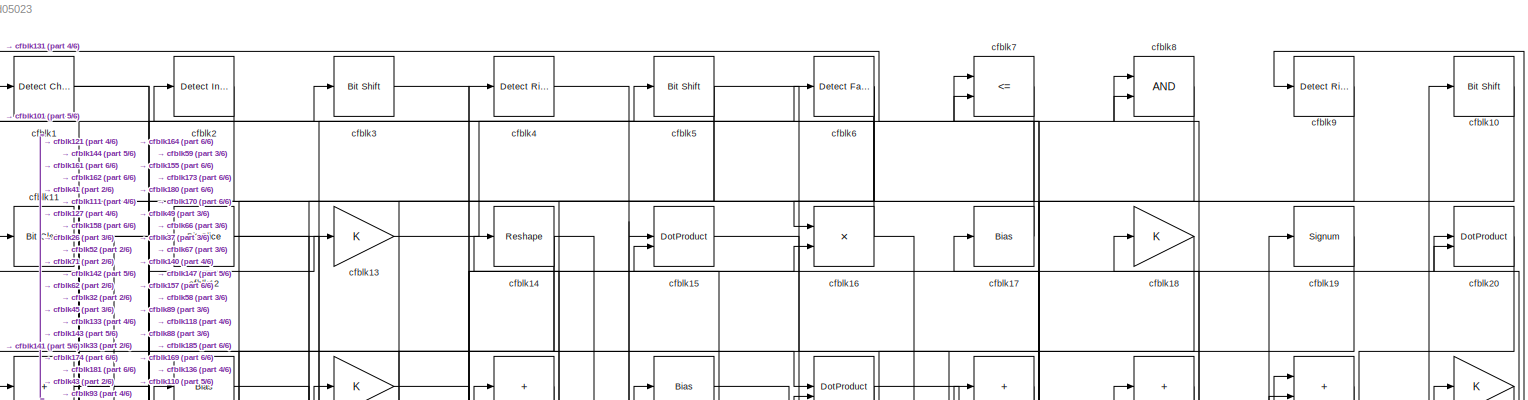
[diagram: root canvas - part 1/6, full width, top band]
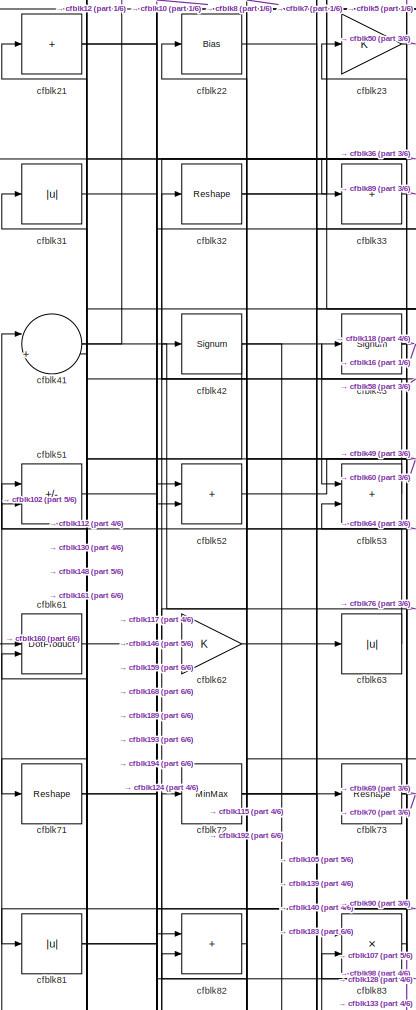
[diagram: root canvas - part 2/6, top left region]
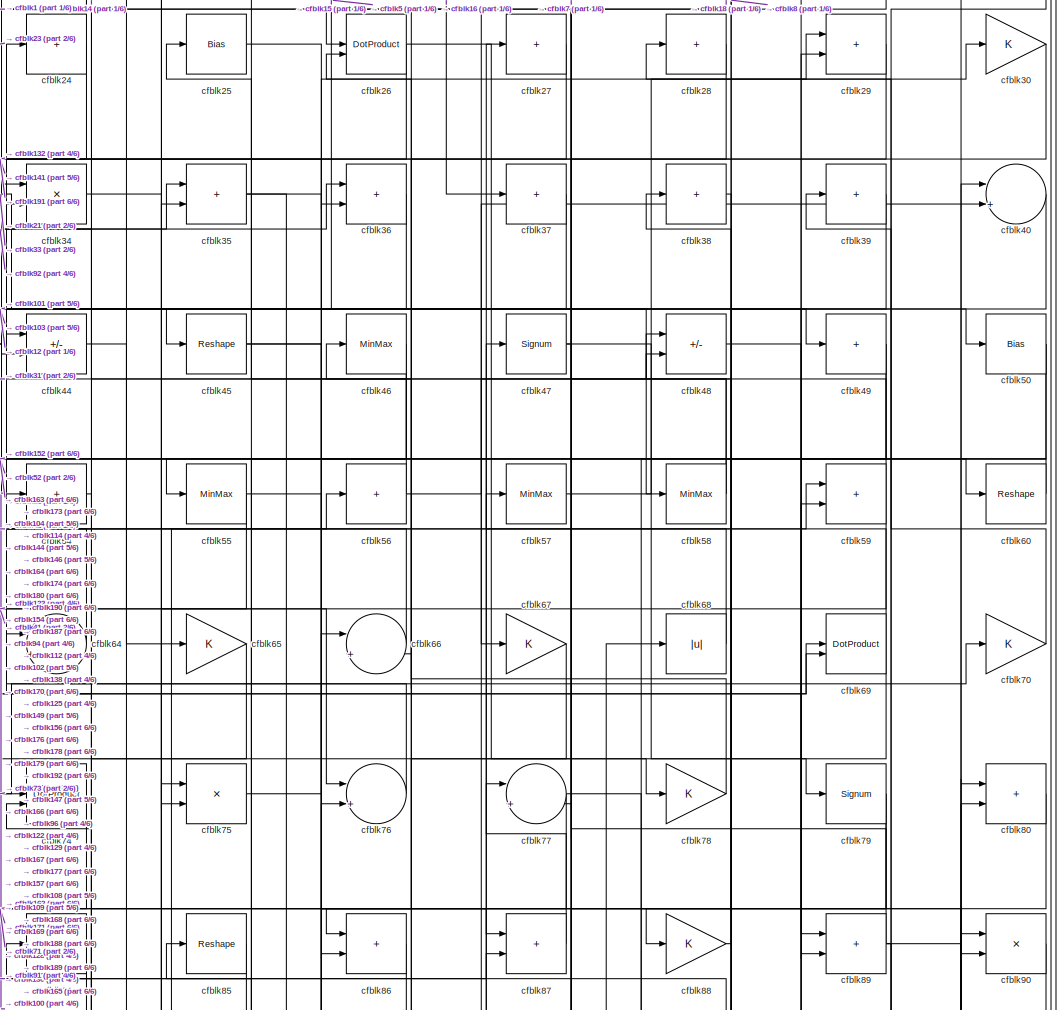
[diagram: root canvas - part 3/6, top center region]
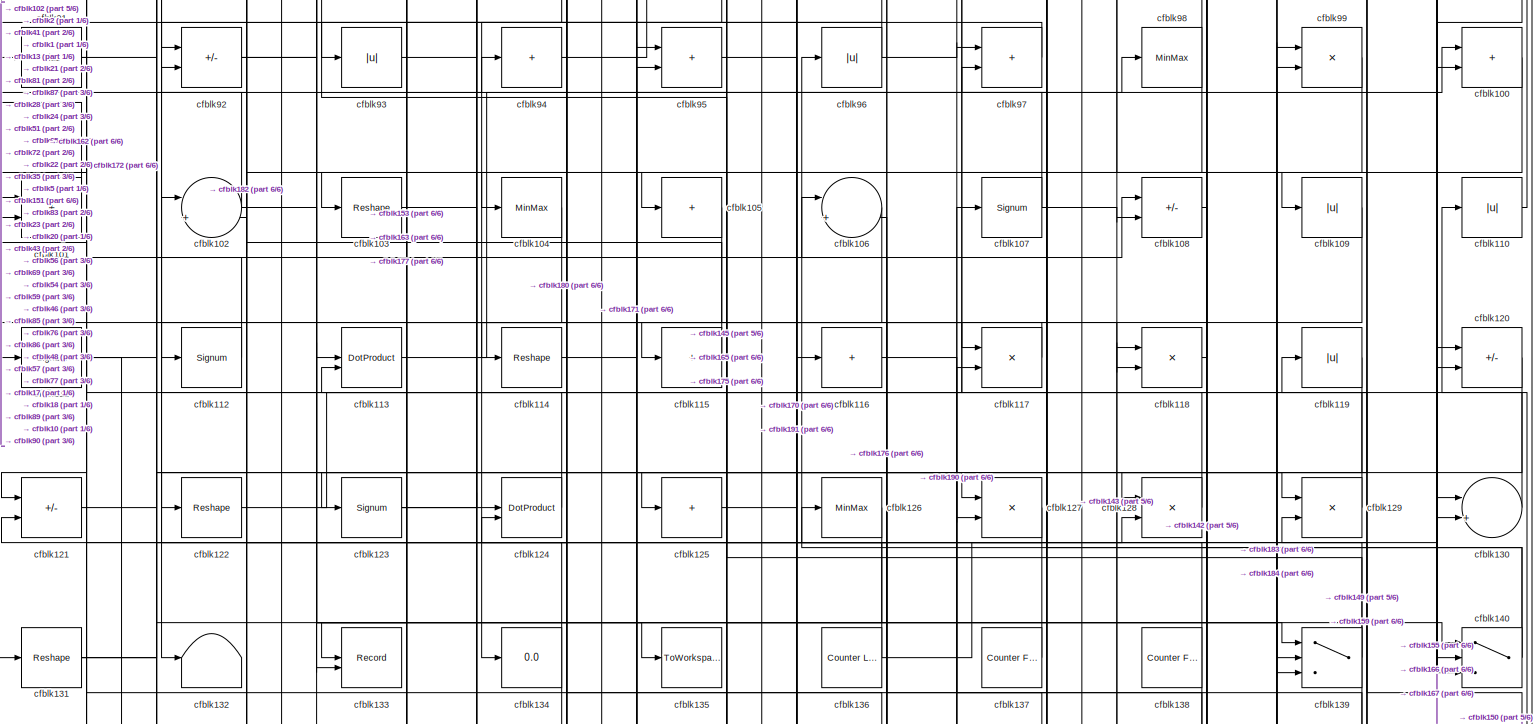
[diagram: root canvas - part 4/6, full width, middle band]
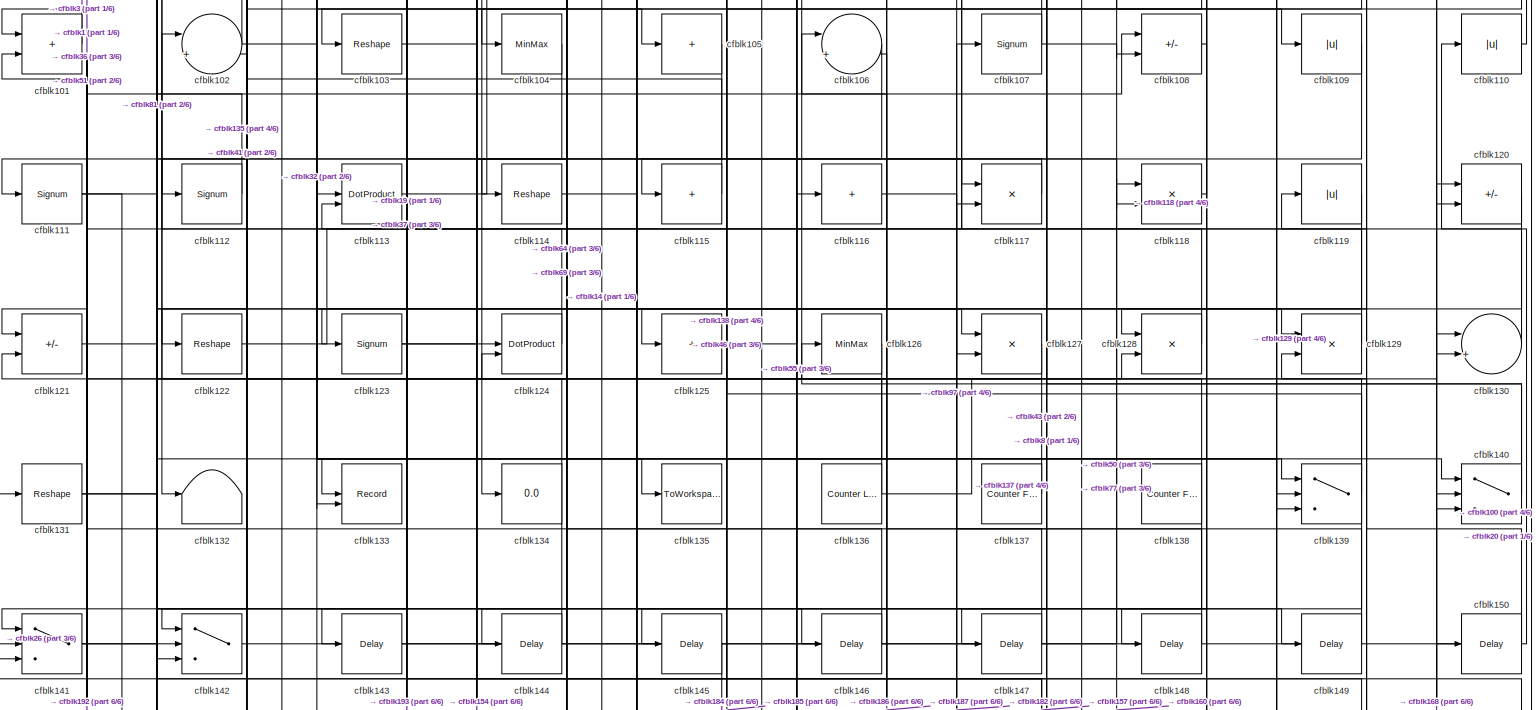
[diagram: root canvas - part 5/6, full width, middle band]
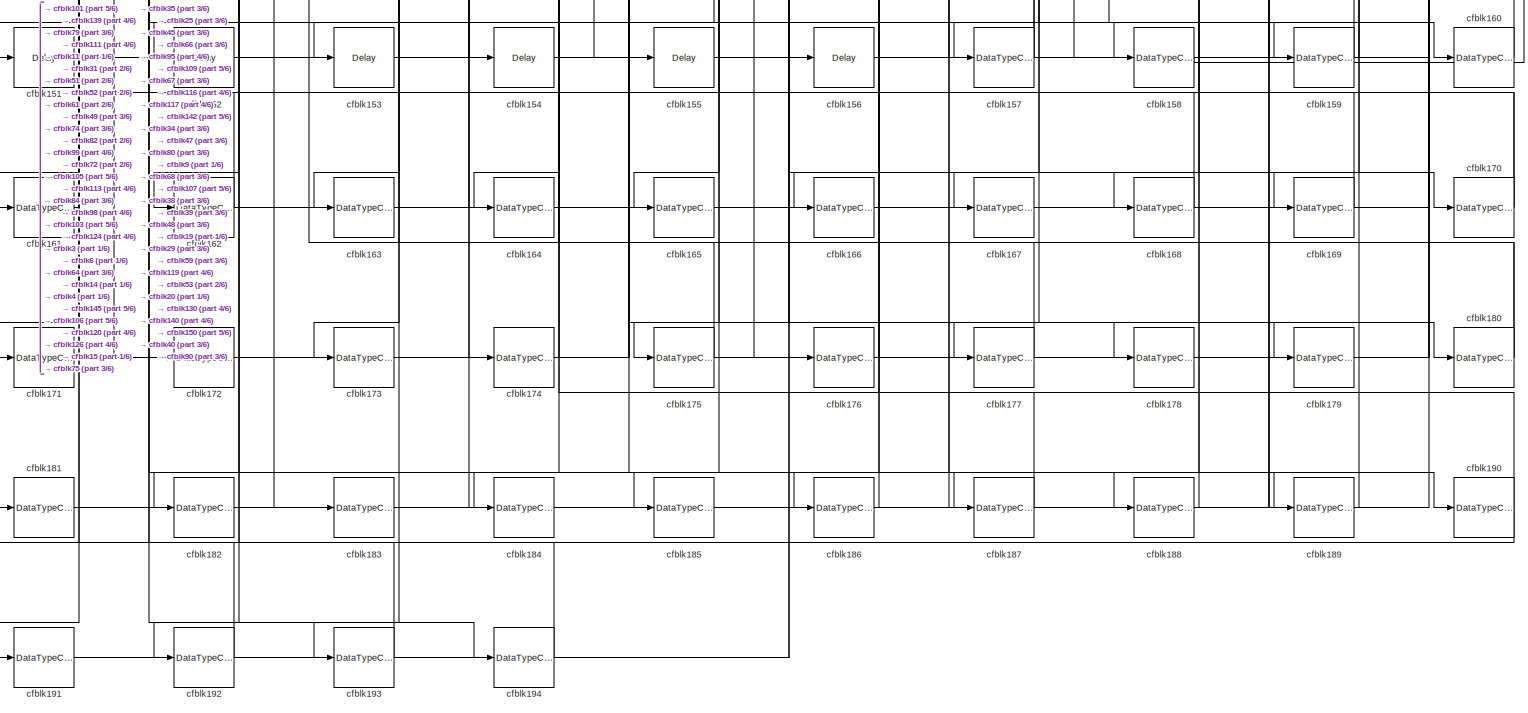
[diagram: root canvas - part 6/6, full width, bottom band]
MODEL slx_635ac7d05023
KIND model
CONFIG AbsTol = auto
CONFIG EnableMultiTasking = off
CONFIG FixedStep = auto
CONFIG MaxStep = auto
CONFIG MinStep = auto
CONFIG RelTol = 1e-3
CONFIG SampleTimeConstraint = Unconstrained
CONFIG SolverName = VariableStepAuto
CONFIG StartTime = 0.0
CONFIG StopTime = 10.0
BLOCK [Reference] cfblk1  REF=simulink/Logic and Bit
Operations/Detect
Change
  LibrarySourceBlock = hdlsllib/Logic and Bit\nOperations/Detect\nChange
  SourceBlock = simulink/Logic and Bit\nOperations/Detect\nChange
  SourceType = Detect Change
BLOCK [Reference] cfblk10  REF=hdlsllib/Logic and Bit
Operations/Bit Shift
  SourceBlock = hdlsllib/Logic and Bit\nOperations/Bit Shift
  SourceType = Bit Shift
BLOCK [Sum] cfblk100
  IconShape = rectangular
BLOCK [Sum] cfblk101
  IconShape = rectangular
BLOCK [Sum] cfblk102
  Inputs = |++
BLOCK [Reshape] cfblk103
BLOCK [MinMax] cfblk104
BLOCK [Sum] cfblk105
  IconShape = rectangular
  Inputs = +
BLOCK [Sum] cfblk106
  Inputs = |++
BLOCK [Signum] cfblk107
BLOCK [Sum] cfblk108
  IconShape = rectangular
  Inputs = +-
BLOCK [Abs] cfblk109
  SaturateOnIntegerOverflow = off
BLOCK [Reference] cfblk11  REF=simulink/Logic and Bit
Operations/Bit Clear
  LibrarySourceBlock = hdlsllib/Logic and Bit\nOperations/Bit Clear
  SourceBlock = simulink/Logic and Bit\nOperations/Bit Clear
  SourceType = Bit Clear
BLOCK [Abs] cfblk110
  SaturateOnIntegerOverflow = off
BLOCK [Signum] cfblk111
BLOCK [Signum] cfblk112
BLOCK [DotProduct] cfblk113
  OutDataTypeStr = Inherit: Inherit via internal rule
BLOCK [Reshape] cfblk114
BLOCK [Sum] cfblk115
  IconShape = rectangular
  Inputs = +
BLOCK [Sum] cfblk116
  IconShape = rectangular
  Inputs = +
BLOCK [Product] cfblk117
  Inputs = */
  RndMeth = Zero
  SaturateOnIntegerOverflow = on
BLOCK [Product] cfblk118
  Inputs = */
  RndMeth = Zero
  SaturateOnIntegerOverflow = on
BLOCK [Abs] cfblk119
  SaturateOnIntegerOverflow = off
BLOCK [Reference] cfblk12  REF=hdlsllib/Logic and Bit
Operations/Bit Slice
  SourceBlock = hdlsllib/Logic and Bit\nOperations/Bit Slice
  SourceType = Bit Slice
BLOCK [Sum] cfblk120
  IconShape = rectangular
  Inputs = +-
BLOCK [Sum] cfblk121
  IconShape = rectangular
  Inputs = +-
BLOCK [Reshape] cfblk122
BLOCK [Signum] cfblk123
BLOCK [DotProduct] cfblk124
  OutDataTypeStr = Inherit: Inherit via internal rule
BLOCK [Sum] cfblk125
  IconShape = rectangular
  Inputs = +
BLOCK [MinMax] cfblk126
BLOCK [Product] cfblk127
  Inputs = */
  RndMeth = Zero
  SaturateOnIntegerOverflow = on
BLOCK [Product] cfblk128
  Inputs = */
  RndMeth = Zero
  SaturateOnIntegerOverflow = on
BLOCK [Product] cfblk129
  Inputs = */
  RndMeth = Zero
  SaturateOnIntegerOverflow = on
BLOCK [Gain] cfblk13
BLOCK [Sum] cfblk130
  Inputs = |++
BLOCK [Reshape] cfblk131
BLOCK [Terminator] cfblk132
BLOCK [Record] cfblk133
  CompatibilityTag = XY
  FileSettingsInternal = {"entries":[{"content":{"excelSettings":{"content":{},"type":"Streamout.ExcelSettings"}},"type":"Streamout.FileSettingStorage","uuid":""}],"packageUris":["http:\/\/schema.mathworks.com\/mf0\/streamout_blocks\/R2020a"],"version":"1.0"}
  Layout = [1 1]
  SignalsInternal = {"entries":[{"content":{"signals":[{"content":{"blockPath":[],"dimensions":[1],"domain":"","lineColor":"#a2142f","plots":[1],"port":1,"signalID":4473,"signalName":"XY Graph:1"},"type":"RecordBlkView.Signal","uuid":""},{"content":{"blockPath":[],"dimensions":[1],"domain":"","lineColor":"#139fff","plots":[1],"port":2,"signalID":4476,"signalName":"XY Graph:2"},"type":"RecordBlkView.Signal","uuid":""}...<+146ch>
  VisualizationBindings = {"xyplotplugin":{"info":[{"series":[{"bindingParametersList":[{"parameter":"X-Axis","signalID":4473,"signalName":"XY Graph:1"},{"parameter":"Y-Axis","signalID":4476,"signalName":"XY Graph:2"}],"seriesID":47126}],"subplotID":1}]}}
  st = -1
BLOCK [Display] cfblk134
  Decimation = 1
BLOCK [ToWorkspace] cfblk135
  MaxDataPoints = inf
  SampleTime = -1
  SaveFormat = Timeseries
  VariableName = simout
BLOCK [Reference] cfblk136  REF=hdlsllib/Sources/Counter
Limited
  SourceBlock = hdlsllib/Sources/Counter\nLimited
  SourceType = Counter Limited
BLOCK [Reference] cfblk137  REF=hdlsllib/Sources/Counter
Free-Running
  SourceBlock = hdlsllib/Sources/Counter\nFree-Running
  SourceType = Counter Free-Running
BLOCK [Reference] cfblk138  REF=hdlsllib/Sources/Counter
Free-Running
  SourceBlock = hdlsllib/Sources/Counter\nFree-Running
  SourceType = Counter Free-Running
BLOCK [Switch] cfblk139
  InputSameDT = off
  SaturateOnIntegerOverflow = off
BLOCK [Reshape] cfblk14
BLOCK [Switch] cfblk140
  InputSameDT = off
  SaturateOnIntegerOverflow = off
BLOCK [Switch] cfblk141
  InputSameDT = off
  SaturateOnIntegerOverflow = off
BLOCK [Switch] cfblk142
  InputSameDT = off
  SaturateOnIntegerOverflow = off
BLOCK [Delay] cfblk143
  InputPortMap = u0
  SampleTime = 1
BLOCK [Delay] cfblk144
  InputPortMap = u0
  SampleTime = 1
BLOCK [Delay] cfblk145
  InputPortMap = u0
  SampleTime = 1
BLOCK [Delay] cfblk146
  InputPortMap = u0
  SampleTime = 1
BLOCK [Delay] cfblk147
  InputPortMap = u0
  SampleTime = 1
BLOCK [Delay] cfblk148
  InputPortMap = u0
  SampleTime = 1
BLOCK [Delay] cfblk149
  InputPortMap = u0
  SampleTime = 1
BLOCK [DotProduct] cfblk15
  OutDataTypeStr = Inherit: Inherit via internal rule
BLOCK [Delay] cfblk150
  InputPortMap = u0
  SampleTime = 1
BLOCK [Delay] cfblk151
  InputPortMap = u0
  SampleTime = 1
BLOCK [Delay] cfblk152
  InputPortMap = u0
  SampleTime = 1
BLOCK [Delay] cfblk153
  InputPortMap = u0
  SampleTime = 1
BLOCK [Delay] cfblk154
  InputPortMap = u0
  SampleTime = 1
BLOCK [Delay] cfblk155
  InputPortMap = u0
  SampleTime = 1
BLOCK [Delay] cfblk156
  InputPortMap = u0
  SampleTime = 1
BLOCK [DataTypeConversion] cfblk157
  RndMeth = Floor
  SaturateOnIntegerOverflow = off
BLOCK [DataTypeConversion] cfblk158
  OutDataTypeStr = uint8
  RndMeth = Floor
  SaturateOnIntegerOverflow = off
BLOCK [DataTypeConversion] cfblk159
  RndMeth = Floor
  SaturateOnIntegerOverflow = off
BLOCK [Product] cfblk16
  Inputs = */
  RndMeth = Zero
  SaturateOnIntegerOverflow = on
BLOCK [DataTypeConversion] cfblk160
  OutDataTypeStr = uint8
  RndMeth = Floor
  SaturateOnIntegerOverflow = off
BLOCK [DataTypeConversion] cfblk161
  OutDataTypeStr = uint8
  RndMeth = Floor
  SaturateOnIntegerOverflow = off
BLOCK [DataTypeConversion] cfblk162
  RndMeth = Floor
  SaturateOnIntegerOverflow = off
BLOCK [DataTypeConversion] cfblk163
  OutDataTypeStr = uint8
  RndMeth = Floor
  SaturateOnIntegerOverflow = off
BLOCK [DataTypeConversion] cfblk164
  OutDataTypeStr = uint8
  RndMeth = Floor
  SaturateOnIntegerOverflow = off
BLOCK [DataTypeConversion] cfblk165
  OutDataTypeStr = uint8
  RndMeth = Floor
  SaturateOnIntegerOverflow = off
BLOCK [DataTypeConversion] cfblk166
  OutDataTypeStr = uint8
  RndMeth = Floor
  SaturateOnIntegerOverflow = off
BLOCK [DataTypeConversion] cfblk167
  OutDataTypeStr = uint8
  RndMeth = Floor
  SaturateOnIntegerOverflow = off
BLOCK [DataTypeConversion] cfblk168
  RndMeth = Floor
  SaturateOnIntegerOverflow = off
BLOCK [DataTypeConversion] cfblk169
  OutDataTypeStr = uint8
  RndMeth = Floor
  SaturateOnIntegerOverflow = off
BLOCK [Bias] cfblk17
  Bias = 0.0
  SaturateOnIntegerOverflow = off
BLOCK [DataTypeConversion] cfblk170
  RndMeth = Floor
  SaturateOnIntegerOverflow = off
BLOCK [DataTypeConversion] cfblk171
  OutDataTypeStr = uint8
  RndMeth = Floor
  SaturateOnIntegerOverflow = off
BLOCK [DataTypeConversion] cfblk172
  OutDataTypeStr = uint8
  RndMeth = Floor
  SaturateOnIntegerOverflow = off
BLOCK [DataTypeConversion] cfblk173
  OutDataTypeStr = uint8
  RndMeth = Floor
  SaturateOnIntegerOverflow = off
BLOCK [DataTypeConversion] cfblk174
  OutDataTypeStr = uint8
  RndMeth = Floor
  SaturateOnIntegerOverflow = off
BLOCK [DataTypeConversion] cfblk175
  RndMeth = Floor
  SaturateOnIntegerOverflow = off
BLOCK [DataTypeConversion] cfblk176
  OutDataTypeStr = uint8
  RndMeth = Floor
  SaturateOnIntegerOverflow = off
BLOCK [DataTypeConversion] cfblk177
  OutDataTypeStr = uint8
  RndMeth = Floor
  SaturateOnIntegerOverflow = off
BLOCK [DataTypeConversion] cfblk178
  OutDataTypeStr = uint8
  RndMeth = Floor
  SaturateOnIntegerOverflow = off
BLOCK [DataTypeConversion] cfblk179
  OutDataTypeStr = uint8
  RndMeth = Floor
  SaturateOnIntegerOverflow = off
BLOCK [Gain] cfblk18
BLOCK [DataTypeConversion] cfblk180
  RndMeth = Floor
  SaturateOnIntegerOverflow = off
BLOCK [DataTypeConversion] cfblk181
  OutDataTypeStr = uint8
  RndMeth = Floor
  SaturateOnIntegerOverflow = off
BLOCK [DataTypeConversion] cfblk182
  OutDataTypeStr = uint8
  RndMeth = Floor
  SaturateOnIntegerOverflow = off
BLOCK [DataTypeConversion] cfblk183
  OutDataTypeStr = uint8
  RndMeth = Floor
  SaturateOnIntegerOverflow = off
BLOCK [DataTypeConversion] cfblk184
  OutDataTypeStr = uint8
  RndMeth = Floor
  SaturateOnIntegerOverflow = off
BLOCK [DataTypeConversion] cfblk185
  OutDataTypeStr = uint8
  RndMeth = Floor
  SaturateOnIntegerOverflow = off
BLOCK [DataTypeConversion] cfblk186
  OutDataTypeStr = uint8
  RndMeth = Floor
  SaturateOnIntegerOverflow = off
BLOCK [DataTypeConversion] cfblk187
  OutDataTypeStr = uint8
  RndMeth = Floor
  SaturateOnIntegerOverflow = off
BLOCK [DataTypeConversion] cfblk188
  RndMeth = Floor
  SaturateOnIntegerOverflow = off
BLOCK [DataTypeConversion] cfblk189
  OutDataTypeStr = uint8
  RndMeth = Floor
  SaturateOnIntegerOverflow = off
BLOCK [Signum] cfblk19
BLOCK [DataTypeConversion] cfblk190
  RndMeth = Floor
  SaturateOnIntegerOverflow = off
BLOCK [DataTypeConversion] cfblk191
  OutDataTypeStr = uint8
  RndMeth = Floor
  SaturateOnIntegerOverflow = off
BLOCK [DataTypeConversion] cfblk192
  RndMeth = Floor
  SaturateOnIntegerOverflow = off
BLOCK [DataTypeConversion] cfblk193
  OutDataTypeStr = uint8
  RndMeth = Floor
  SaturateOnIntegerOverflow = off
BLOCK [DataTypeConversion] cfblk194
  OutDataTypeStr = uint8
  RndMeth = Floor
  SaturateOnIntegerOverflow = off
BLOCK [Reference] cfblk2  REF=simulink/Logic and Bit
Operations/Detect
Increase
  LibrarySourceBlock = hdlsllib/Logic and Bit\nOperations/Detect\nIncrease
  SourceBlock = simulink/Logic and Bit\nOperations/Detect\nIncrease
  SourceType = Detect Increase
BLOCK [DotProduct] cfblk20
  OutDataTypeStr = Inherit: Inherit via internal rule
BLOCK [Sum] cfblk21
  IconShape = rectangular
  Inputs = +
BLOCK [Bias] cfblk22
  Bias = 0.0
  SaturateOnIntegerOverflow = off
BLOCK [Gain] cfblk23
BLOCK [Sum] cfblk24
  IconShape = rectangular
  Inputs = +
BLOCK [Bias] cfblk25
  Bias = 0.0
  SaturateOnIntegerOverflow = off
BLOCK [DotProduct] cfblk26
  OutDataTypeStr = Inherit: Inherit via internal rule
BLOCK [Sum] cfblk27
  IconShape = rectangular
  Inputs = +
BLOCK [Sum] cfblk28
  IconShape = rectangular
  Inputs = +
BLOCK [Sum] cfblk29
  IconShape = rectangular
BLOCK [Reference] cfblk3  REF=hdlsllib/Logic and Bit
Operations/Bit Shift
  SourceBlock = hdlsllib/Logic and Bit\nOperations/Bit Shift
  SourceType = Bit Shift
BLOCK [Gain] cfblk30
BLOCK [Abs] cfblk31
  SaturateOnIntegerOverflow = off
BLOCK [Reshape] cfblk32
BLOCK [Sum] cfblk33
  IconShape = rectangular
  Inputs = +
BLOCK [Product] cfblk34
  Inputs = */
  RndMeth = Zero
  SaturateOnIntegerOverflow = on
BLOCK [Sum] cfblk35
  IconShape = rectangular
BLOCK [Sum] cfblk36
  IconShape = rectangular
BLOCK [Sum] cfblk37
  IconShape = rectangular
  Inputs = +
BLOCK [Sum] cfblk38
  IconShape = rectangular
  Inputs = +
BLOCK [Sum] cfblk39
  IconShape = rectangular
  Inputs = +
BLOCK [Reference] cfblk4  REF=hdlsllib/Logic and Bit
Operations/Detect Rise
Positive
  SourceBlock = hdlsllib/Logic and Bit\nOperations/Detect Rise\nPositive
  SourceType = Detect Rise Positive
BLOCK [Sum] cfblk40
  Inputs = |++
BLOCK [Sum] cfblk41
  Inputs = |++
BLOCK [Signum] cfblk42
BLOCK [Signum] cfblk43
BLOCK [Sum] cfblk44
  IconShape = rectangular
  Inputs = +-
BLOCK [Reshape] cfblk45
BLOCK [MinMax] cfblk46
BLOCK [Signum] cfblk47
BLOCK [Sum] cfblk48
  IconShape = rectangular
  Inputs = +-
BLOCK [Sum] cfblk49
  IconShape = rectangular
  Inputs = +
BLOCK [Reference] cfblk5  REF=hdlsllib/Logic and Bit
Operations/Bit Shift
  SourceBlock = hdlsllib/Logic and Bit\nOperations/Bit Shift
  SourceType = Bit Shift
BLOCK [Bias] cfblk50
  Bias = 0.0
  SaturateOnIntegerOverflow = off
BLOCK [Sum] cfblk51
  IconShape = rectangular
  Inputs = +-
BLOCK [Sum] cfblk52
  IconShape = rectangular
BLOCK [Sum] cfblk53
  IconShape = rectangular
BLOCK [Sum] cfblk54
  IconShape = rectangular
  Inputs = +
BLOCK [MinMax] cfblk55
BLOCK [Sum] cfblk56
  IconShape = rectangular
  Inputs = +
BLOCK [MinMax] cfblk57
BLOCK [MinMax] cfblk58
BLOCK [Sum] cfblk59
  IconShape = rectangular
BLOCK [Reference] cfblk6  REF=hdlsllib/Logic and Bit
Operations/Detect Fall
Nonpositive
  SourceBlock = hdlsllib/Logic and Bit\nOperations/Detect Fall\nNonpositive
  SourceType = Detect Fall Nonpositive
BLOCK [Reshape] cfblk60
BLOCK [DotProduct] cfblk61
  OutDataTypeStr = Inherit: Inherit via internal rule
BLOCK [Gain] cfblk62
BLOCK [Abs] cfblk63
  SaturateOnIntegerOverflow = off
BLOCK [Sum] cfblk64
  Inputs = |++
BLOCK [Gain] cfblk65
BLOCK [Sum] cfblk66
  Inputs = |++
BLOCK [Gain] cfblk67
BLOCK [Abs] cfblk68
  SaturateOnIntegerOverflow = off
BLOCK [DotProduct] cfblk69
  OutDataTypeStr = Inherit: Inherit via internal rule
BLOCK [RelationalOperator] cfblk7
  InputSameDT = off
  Operator = <=
  OutDataTypeStr = boolean
BLOCK [Gain] cfblk70
BLOCK [Reshape] cfblk71
BLOCK [MinMax] cfblk72
BLOCK [Reshape] cfblk73
BLOCK [DotProduct] cfblk74
  OutDataTypeStr = Inherit: Inherit via internal rule
BLOCK [Product] cfblk75
  Inputs = */
  RndMeth = Zero
  SaturateOnIntegerOverflow = on
BLOCK [Sum] cfblk76
  Inputs = |++
BLOCK [Sum] cfblk77
  Inputs = |++
BLOCK [Gain] cfblk78
BLOCK [Signum] cfblk79
BLOCK [Logic] cfblk8
  AllPortsSameDT = off
  OutDataTypeStr = boolean
BLOCK [Sum] cfblk80
  IconShape = rectangular
BLOCK [Abs] cfblk81
  SaturateOnIntegerOverflow = off
BLOCK [Sum] cfblk82
  IconShape = rectangular
BLOCK [Product] cfblk83
  Inputs = */
  RndMeth = Zero
  SaturateOnIntegerOverflow = on
BLOCK [Sum] cfblk84
  IconShape = rectangular
  Inputs = +
BLOCK [Reshape] cfblk85
BLOCK [Sum] cfblk86
  IconShape = rectangular
BLOCK [Sum] cfblk87
  IconShape = rectangular
BLOCK [Gain] cfblk88
BLOCK [Sum] cfblk89
  IconShape = rectangular
BLOCK [Reference] cfblk9  REF=hdlsllib/Logic and Bit
Operations/Detect Rise
Nonnegative
  SourceBlock = hdlsllib/Logic and Bit\nOperations/Detect Rise\nNonnegative
  SourceType = Detect Rise Nonnegative
BLOCK [Product] cfblk90
  Inputs = */
  RndMeth = Zero
  SaturateOnIntegerOverflow = on
BLOCK [Bias] cfblk91
  Bias = 0.0
  SaturateOnIntegerOverflow = off
BLOCK [Sum] cfblk92
  IconShape = rectangular
  Inputs = +-
BLOCK [Abs] cfblk93
  SaturateOnIntegerOverflow = off
BLOCK [Sum] cfblk94
  IconShape = rectangular
  Inputs = +
BLOCK [Sum] cfblk95
  IconShape = rectangular
BLOCK [Abs] cfblk96
  SaturateOnIntegerOverflow = off
BLOCK [Sum] cfblk97
  IconShape = rectangular
BLOCK [MinMax] cfblk98
BLOCK [Product] cfblk99
  Inputs = */
  RndMeth = Zero
  SaturateOnIntegerOverflow = on
LINE cfblk100:1 -> cfblk145:1
LINE cfblk101:1 -> cfblk3:1
NET cfblk102:1 -> cfblk135:1, cfblk41:1
LINE cfblk103:1 -> cfblk154:1
LINE cfblk104:1 -> cfblk141:1
LINE cfblk105:1 -> cfblk193:1
LINE cfblk106:1 -> cfblk185:1
NET cfblk107:1 -> cfblk160:1, cfblk43:1
LINE cfblk108:1 -> cfblk148:1
LINE cfblk109:1 -> cfblk186:1
LINE cfblk10:1 -> cfblk52:2
LINE cfblk110:1 -> cfblk20:1
NET cfblk111:1 -> cfblk13:1, cfblk172:1
LINE cfblk112:1 -> cfblk41:2
LINE cfblk113:1 -> cfblk100:1
LINE cfblk114:1 -> cfblk98:1
LINE cfblk115:1 -> cfblk51:1
LINE cfblk116:1 -> cfblk190:1
LINE cfblk117:1 -> cfblk115:1
LINE cfblk118:1 -> cfblk18:1
LINE cfblk119:1 -> cfblk163:1
LINE cfblk11:1 -> cfblk158:1
LINE cfblk120:1 -> cfblk165:1
LINE cfblk121:1 -> cfblk129:1
LINE cfblk122:1 -> cfblk77:1
NET cfblk123:1 -> cfblk56:1, cfblk69:2
LINE cfblk124:1 -> cfblk72:1
LINE cfblk125:1 -> cfblk76:2
LINE cfblk126:1 -> cfblk175:1
LINE cfblk127:1 -> cfblk121:2
LINE cfblk128:1 -> cfblk23:1
LINE cfblk129:1 -> cfblk57:1
NET cfblk12:1 -> cfblk45:1, cfblk58:1
LINE cfblk130:1 -> cfblk21:1
NET cfblk131:1 -> cfblk128:2, cfblk94:1
NET cfblk136:1 -> cfblk10:1, cfblk92:2
LINE cfblk137:1 -> cfblk102:1
NET cfblk138:1 -> cfblk142:3, cfblk85:1
NET cfblk139:1 -> cfblk151:1, cfblk83:1, cfblk97:2
LINE cfblk13:1 -> cfblk6:1
NET cfblk140:1 -> cfblk17:1, cfblk96:1
NET cfblk141:1 -> cfblk108:1, cfblk36:1
LINE cfblk142:1 -> cfblk110:1
LINE cfblk143:1 -> cfblk118:1
LINE cfblk144:1 -> cfblk1:1
LINE cfblk145:1 -> cfblk184:1
LINE cfblk146:1 -> cfblk64:1
LINE cfblk147:1 -> cfblk26:2
LINE cfblk148:1 -> cfblk51:2
LINE cfblk149:1 -> cfblk97:1
NET cfblk14:1 -> cfblk141:3, cfblk142:1, cfblk155:1
LINE cfblk150:1 -> cfblk129:2
LINE cfblk151:1 -> cfblk117:2
LINE cfblk152:1 -> cfblk29:2
LINE cfblk153:1 -> cfblk124:1
LINE cfblk154:1 -> cfblk35:2
LINE cfblk155:1 -> cfblk140:3
LINE cfblk156:1 -> cfblk59:2
NET cfblk157:1 -> cfblk142:2, cfblk34:1, cfblk68:1
LINE cfblk158:1 -> cfblk9:1
NET cfblk159:1 -> cfblk119:1, cfblk53:2
LINE cfblk15:1 -> cfblk67:1
LINE cfblk160:1 -> cfblk61:1
LINE cfblk161:1 -> cfblk61:2
NET cfblk162:1 -> cfblk11:1, cfblk130:1
LINE cfblk163:1 -> cfblk74:1
LINE cfblk164:1 -> cfblk74:2
LINE cfblk165:1 -> cfblk40:1
LINE cfblk166:1 -> cfblk120:1
LINE cfblk167:1 -> cfblk120:2
NET cfblk168:1 -> cfblk150:1, cfblk52:1
LINE cfblk169:1 -> cfblk38:1
NET cfblk16:1 -> cfblk2:1, cfblk37:1
NET cfblk170:1 -> cfblk15:2, cfblk75:1
LINE cfblk171:1 -> cfblk95:1
LINE cfblk172:1 -> cfblk95:2
LINE cfblk173:1 -> cfblk15:1
LINE cfblk174:1 -> cfblk84:1
NET cfblk175:1 -> cfblk124:2, cfblk140:2
LINE cfblk176:1 -> cfblk126:1
LINE cfblk177:1 -> cfblk113:2
LINE cfblk178:1 -> cfblk80:1
LINE cfblk179:1 -> cfblk80:2
LINE cfblk17:1 -> cfblk131:1
NET cfblk180:1 -> cfblk113:1, cfblk64:2
LINE cfblk181:1 -> cfblk4:1
LINE cfblk182:1 -> cfblk107:1
LINE cfblk183:1 -> cfblk99:1
LINE cfblk184:1 -> cfblk99:2
LINE cfblk185:1 -> cfblk19:1
LINE cfblk186:1 -> cfblk106:1
LINE cfblk187:1 -> cfblk106:2
NET cfblk188:1 -> cfblk48:2, cfblk90:1
LINE cfblk189:1 -> cfblk39:1
LINE cfblk18:1 -> cfblk66:2
NET cfblk190:1 -> cfblk181:1, cfblk34:2
LINE cfblk191:1 -> cfblk116:1
NET cfblk192:1 -> cfblk101:2, cfblk66:1
LINE cfblk193:1 -> cfblk82:1
LINE cfblk194:1 -> cfblk82:2
LINE cfblk19:1 -> cfblk143:1
NET cfblk1:1 -> cfblk127:2, cfblk26:1
LINE cfblk20:1 -> cfblk169:1
NET cfblk21:1 -> cfblk139:1, cfblk36:2
LINE cfblk22:1 -> cfblk139:2
LINE cfblk23:1 -> cfblk50:1
LINE cfblk24:1 -> cfblk92:1
LINE cfblk25:1 -> cfblk156:1
NET cfblk26:1 -> cfblk141:2, cfblk78:1
LINE cfblk27:1 -> cfblk86:1
LINE cfblk28:1 -> cfblk132:1
LINE cfblk29:1 -> cfblk191:1
LINE cfblk2:1 -> cfblk121:1
LINE cfblk30:1 -> cfblk77:2
LINE cfblk31:1 -> cfblk194:1
NET cfblk32:1 -> cfblk105:1, cfblk5:1
LINE cfblk33:1 -> cfblk89:2
LINE cfblk34:1 -> cfblk187:1
NET cfblk35:1 -> cfblk176:1, cfblk178:1
LINE cfblk36:1 -> cfblk101:1
LINE cfblk37:1 -> cfblk103:1
LINE cfblk38:1 -> cfblk168:1
LINE cfblk39:1 -> cfblk188:1
LINE cfblk3:1 -> cfblk174:1
LINE cfblk40:1 -> cfblk44:2
NET cfblk41:1 -> cfblk12:1, cfblk76:1
NET cfblk42:1 -> cfblk53:1, cfblk71:1, cfblk73:1
NET cfblk43:1 -> cfblk118:2, cfblk16:2
LINE cfblk44:1 -> cfblk65:1
NET cfblk45:1 -> cfblk179:1, cfblk87:1
NET cfblk46:1 -> cfblk102:2, cfblk125:1
NET cfblk47:1 -> cfblk167:1, cfblk79:1
LINE cfblk48:1 -> cfblk89:1
NET cfblk49:1 -> cfblk152:1, cfblk81:1
LINE cfblk4:1 -> cfblk180:1
NET cfblk50:1 -> cfblk108:2, cfblk88:1
LINE cfblk51:1 -> cfblk189:1
LINE cfblk52:1 -> cfblk60:1
LINE cfblk53:1 -> cfblk32:1
LINE cfblk54:1 -> cfblk114:1
NET cfblk55:1 -> cfblk149:1, cfblk75:2
NET cfblk56:1 -> cfblk25:1, cfblk40:2
LINE cfblk57:1 -> cfblk29:1
NET cfblk58:1 -> cfblk31:1, cfblk7:2
NET cfblk59:1 -> cfblk123:1, cfblk14:1
NET cfblk5:1 -> cfblk133:2, cfblk33:1, cfblk49:1
LINE cfblk60:1 -> cfblk55:1
LINE cfblk61:1 -> cfblk159:1
LINE cfblk62:1 -> cfblk63:1
LINE cfblk63:1 -> cfblk22:1
LINE cfblk64:1 -> cfblk42:1
LINE cfblk65:1 -> cfblk122:1
LINE cfblk66:1 -> cfblk44:1
LINE cfblk67:1 -> cfblk166:1
LINE cfblk68:1 -> cfblk47:1
NET cfblk69:1 -> cfblk104:1, cfblk54:1
NET cfblk6:1 -> cfblk161:1, cfblk164:1, cfblk16:1
LINE cfblk70:1 -> cfblk28:1
NET cfblk71:1 -> cfblk8:2, cfblk90:2
NET cfblk72:1 -> cfblk139:3, cfblk140:1, cfblk183:1
NET cfblk73:1 -> cfblk69:1, cfblk70:1
LINE cfblk74:1 -> cfblk162:1
LINE cfblk75:1 -> cfblk30:1
LINE cfblk76:1 -> cfblk24:1
NET cfblk77:1 -> cfblk109:1, cfblk144:1
LINE cfblk78:1 -> cfblk46:1
NET cfblk79:1 -> cfblk171:1, cfblk86:2
LINE cfblk7:1 -> cfblk62:1
LINE cfblk80:1 -> cfblk177:1
NET cfblk81:1 -> cfblk117:1, cfblk146:1
LINE cfblk82:1 -> cfblk192:1
LINE cfblk83:1 -> cfblk133:1
LINE cfblk84:1 -> cfblk173:1
LINE cfblk85:1 -> cfblk112:1
LINE cfblk86:1 -> cfblk134:1
LINE cfblk87:1 -> cfblk27:1
LINE cfblk88:1 -> cfblk8:1
NET cfblk89:1 -> cfblk128:1, cfblk130:2, cfblk7:1
LINE cfblk8:1 -> cfblk147:1
LINE cfblk90:1 -> cfblk100:2
NET cfblk91:1 -> cfblk111:1, cfblk87:2
NET cfblk92:1 -> cfblk127:1, cfblk35:1
LINE cfblk93:1 -> cfblk20:2
LINE cfblk94:1 -> cfblk59:1
LINE cfblk95:1 -> cfblk170:1
NET cfblk96:1 -> cfblk48:1, cfblk91:1
LINE cfblk97:1 -> cfblk93:1
NET cfblk98:1 -> cfblk153:1, cfblk83:2
LINE cfblk99:1 -> cfblk182:1
LINE cfblk9:1 -> cfblk157:1
note: NET lines group one-source signal fan-out (src -> all destinations, sorted); 1:1 wires keep LINE
